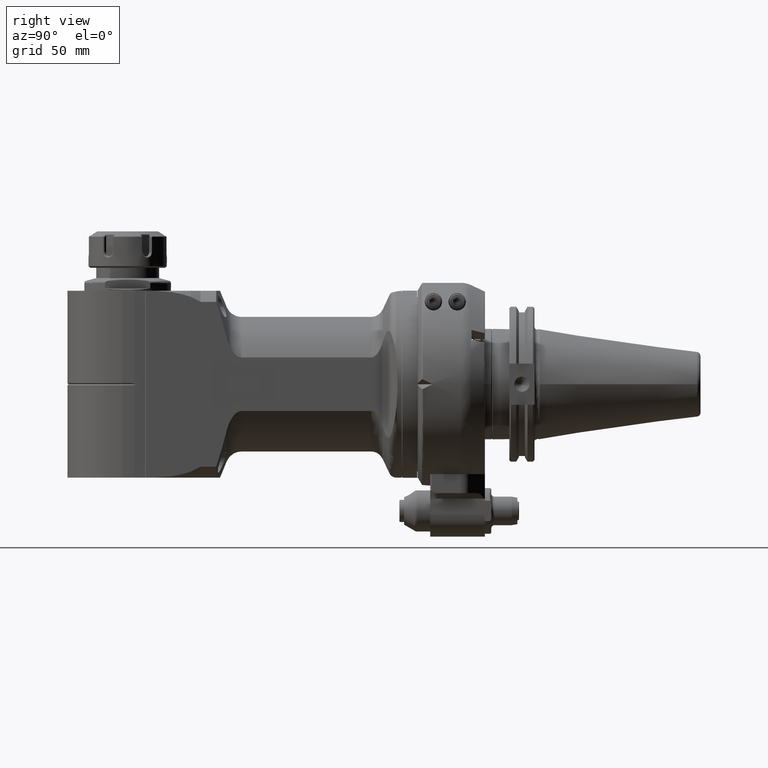
[diagram: clean part render]
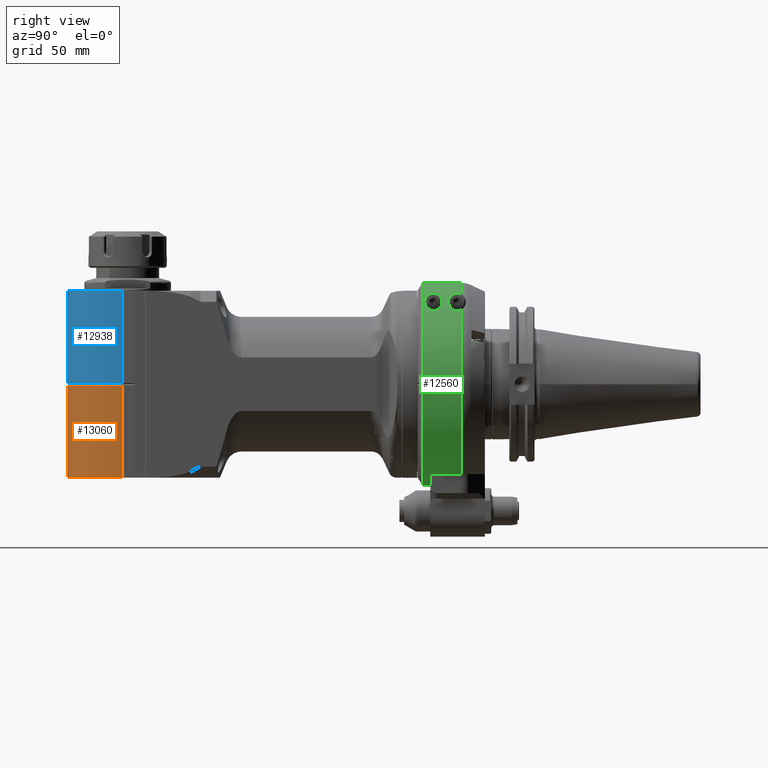
[diagram: same view with three faces highlighted in distinct colors, each labeled with its STEP entity id]
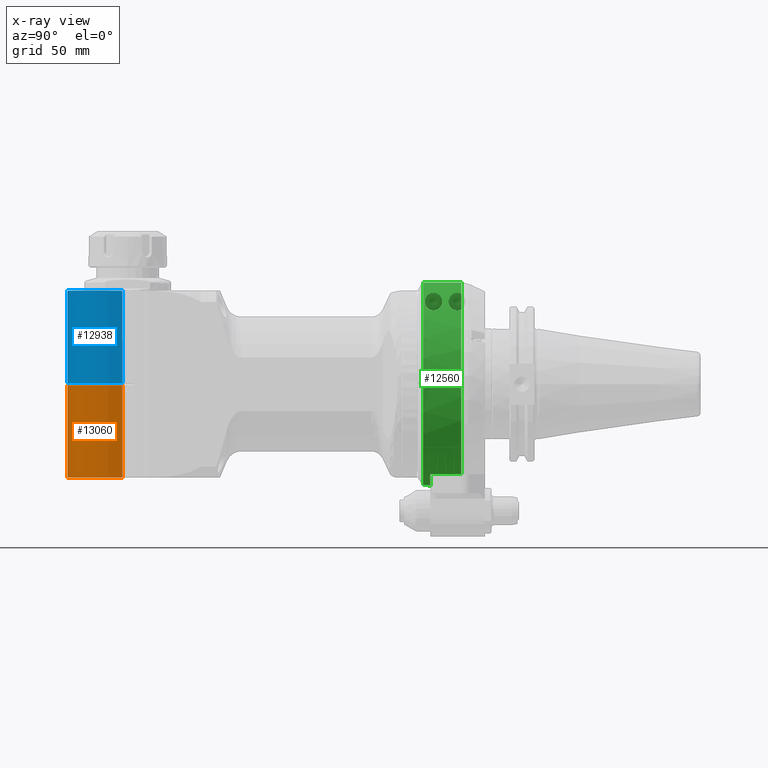
[diagram: x-ray of the same camera — body ghosted, the three highlighted faces saturated]
A machine part, right view with three faces highlighted in distinct colors.
The next image is the same camera in x-ray (body ghosted, the three faces saturated) — at least one of them is partly hidden behind the body in this view.
Their STEP definitions:

[orange] entity #13060 — the highlighted cylindrical surface (partial cylindrical patch) has radius 38 mm, axis along (-0, 0, -1).
#589=CYLINDRICAL_SURFACE('',#14350,38.);
#1122=CIRCLE('',#14148,38.);
#1205=CIRCLE('',#14351,38.);
#1804=FACE_OUTER_BOUND('',#2553,.T.);
#2553=EDGE_LOOP('',(#10869,#10870,#10871,#10872));
#3678=LINE('',#36404,#4625);
#3685=LINE('',#36440,#4632);
#4625=VECTOR('',#17210,58.33431457505);
#4632=VECTOR('',#17249,58.33431457505);
#5736=VERTEX_POINT('',#35449);
#5737=VERTEX_POINT('',#35451);
#5879=VERTEX_POINT('',#36403);
#5886=VERTEX_POINT('',#36439);
#7417=EDGE_CURVE('',#5736,#5737,#1122,.T.);
#7649=EDGE_CURVE('',#5879,#5737,#3678,.T.);
#7665=EDGE_CURVE('',#5736,#5886,#3685,.T.);
#7667=EDGE_CURVE('',#5879,#5886,#1205,.T.);
#10869=ORIENTED_EDGE('',*,*,#7649,.T.);
#10870=ORIENTED_EDGE('',*,*,#7417,.F.);
#10871=ORIENTED_EDGE('',*,*,#7665,.T.);
#10872=ORIENTED_EDGE('',*,*,#7667,.F.);
#13060=ADVANCED_FACE('',(#1804),#589,.T.);
#14148=AXIS2_PLACEMENT_3D('',#35452,#16750,#16751);
#14350=AXIS2_PLACEMENT_3D('',#36442,#17251,#17252);
#14351=AXIS2_PLACEMENT_3D('',#36443,#17253,#17254);
#16750=DIRECTION('center_axis',(0.,1.,0.));
#16751=DIRECTION('ref_axis',(0.0871557427475263,0.,0.996194698091757));
#17210=DIRECTION('',(-2.972048763895E-14,1.,0.));
#17249=DIRECTION('',(3.020770874779E-14,-1.,0.));
#17251=DIRECTION('center_axis',(0.,1.,0.));
#17252=DIRECTION('ref_axis',(1.,0.,-2.23269251724179E-14));
#17253=DIRECTION('center_axis',(0.,-1.,0.));
#17254=DIRECTION('ref_axis',(1.,0.,0.));
#35449=CARTESIAN_POINT('',(176.3119182244,59.,37.85539852749));
#35451=CARTESIAN_POINT('',(176.3119182244,59.,-37.85539852749));
#35452=CARTESIAN_POINT('Origin',(173.,59.,0.));
#36403=CARTESIAN_POINT('',(176.3119182244,0.6656854249492,-37.85539852749));
#36404=CARTESIAN_POINT('',(176.3119182244,0.6656854249492,-37.85539852749));
#36439=CARTESIAN_POINT('',(176.3119182244,0.6656854249492,37.85539852749));
#36440=CARTESIAN_POINT('',(176.3119182244,59.,37.85539852749));
#36442=CARTESIAN_POINT('Origin',(173.,-70.8000024,0.));
#36443=CARTESIAN_POINT('Origin',(173.,0.6656854249492,0.));

[blue] entity #12938 — the highlighted cylindrical surface (partial cylindrical patch) has radius 38 mm, axis along (-0, 0, -1).
#564=CYLINDRICAL_SURFACE('',#14142,38.);
#1112=CIRCLE('',#14128,38.);
#1119=CIRCLE('',#14140,38.);
#1682=FACE_OUTER_BOUND('',#2412,.T.);
#2412=EDGE_LOOP('',(#10291,#10292,#10293,#10294));
#3567=LINE('',#35224,#4514);
#3583=LINE('',#35404,#4530);
#4514=VECTOR('',#16693,58.33431457505);
#4530=VECTOR('',#16733,58.33431457505);
#5676=VERTEX_POINT('',#35165);
#5677=VERTEX_POINT('',#35167);
#5693=VERTEX_POINT('',#35222);
#5727=VERTEX_POINT('',#35398);
#7346=EDGE_CURVE('',#5676,#5677,#1112,.T.);
#7365=EDGE_CURVE('',#5676,#5693,#3567,.T.);
#7402=EDGE_CURVE('',#5727,#5693,#1119,.T.);
#7405=EDGE_CURVE('',#5727,#5677,#3583,.T.);
#10291=ORIENTED_EDGE('',*,*,#7402,.F.);
#10292=ORIENTED_EDGE('',*,*,#7405,.T.);
#10293=ORIENTED_EDGE('',*,*,#7346,.F.);
#10294=ORIENTED_EDGE('',*,*,#7365,.T.);
#12938=ADVANCED_FACE('',(#1682),#564,.T.);
#14128=AXIS2_PLACEMENT_3D('',#35168,#16680,#16681);
#14140=AXIS2_PLACEMENT_3D('',#35399,#16726,#16727);
#14142=AXIS2_PLACEMENT_3D('',#35403,#16731,#16732);
#16680=DIRECTION('center_axis',(0.,-1.,0.));
#16681=DIRECTION('ref_axis',(0.0871557427475263,0.,-0.996194698091757));
#16693=DIRECTION('',(3.069492985662E-14,1.,0.));
#16726=DIRECTION('center_axis',(0.,1.,0.));
#16727=DIRECTION('ref_axis',(0.087155742747664,0.,0.996194698091745));
#16731=DIRECTION('center_axis',(0.,1.,0.));
#16732=DIRECTION('ref_axis',(1.,0.,2.3215103592118E-14));
#16733=DIRECTION('',(-3.118215096546E-14,-1.,0.));
#35165=CARTESIAN_POINT('',(176.3119182244,-59.,-37.85539852749));
#35167=CARTESIAN_POINT('',(176.3119182244,-59.,37.85539852749));
#35168=CARTESIAN_POINT('Origin',(173.,-59.,0.));
#35222=CARTESIAN_POINT('',(176.3119182244,-0.6656854249492,-37.85539852749));
#35224=CARTESIAN_POINT('',(176.3119182244,-59.,-37.85539852749));
#35398=CARTESIAN_POINT('',(176.3119182244,-0.6656854249492,37.85539852749));
#35399=CARTESIAN_POINT('Origin',(173.,-0.6656854249492,0.));
#35403=CARTESIAN_POINT('Origin',(173.,-70.8000024,0.));
#35404=CARTESIAN_POINT('',(176.3119182244,-0.6656854249492,37.85539852749));

[green] entity #12560 — the highlighted cylindrical surface (partial cylindrical patch) has radius 64 mm, axis along (0, -1, 0).
#231=ELLIPSE('',#13413,181.019335983739,64.);
#232=ELLIPSE('',#13414,181.019335983739,64.);
#240=B_SPLINE_CURVE_WITH_KNOTS('',3,(#17960,#17961,#17962,#17963,#17964,
#17965,#17966,#17967,#17968,#17969,#17970,#17971,#17972,#17973,#17974,#17975,
#17976,#17977,#17978,#17979,#17980,#17981,#17982,#17983,#17984,#17985,#17986,
#17987,#17988,#17989,#17990),.UNSPECIFIED.,.F.,.F.,(4,2,2,2,2,2,2,2,2,3,
2,2,2,2,4),(2.33576591656641,2.53697025208635,2.73817458760629,3.07997710502095,
3.42177962243561,3.82914079742247,4.23650197240934,4.45401690277108,4.56277436795195,
4.67153183313282,4.78028929831369,4.88904676349456,5.1065616938563,5.51392286884317,
5.92128404383004),.UNSPECIFIED.);
#241=B_SPLINE_CURVE_WITH_KNOTS('',3,(#17991,#17992,#17993,#17994,#17995,
#17996,#17997,#17998,#17999,#18000),.UNSPECIFIED.,.F.,.F.,(4,2,2,2,4),(1.24975221070201,
1.59155472811516,1.9333572455283,2.13456158104736,2.33576591656641),
 .UNSPECIFIED.);
#242=B_SPLINE_CURVE_WITH_KNOTS('',3,(#18028,#18029,#18030,#18031,#18032,
#18033),.UNSPECIFIED.,.F.,.F.,(4,2,4),(-0.273385795737172,-0.201204335519941,
0.),.UNSPECIFIED.);
#243=B_SPLINE_CURVE_WITH_KNOTS('',3,(#18034,#18035,#18036,#18037,#18038,
#18039,#18040,#18041,#18042,#18043,#18044,#18045,#18046,#18047,#18048,#18049,
#18050,#18051,#18052,#18053,#18054,#18055,#18056,#18057,#18058,#18059),
 .UNSPECIFIED.,.F.,.F.,(4,2,2,2,2,2,2,2,2,2,2,2,4),(0.,0.201204335519941,
0.402408671039883,0.74421118845454,1.0860137058692,1.49337488085606,1.90073605584293,
2.11825098620467,2.22700845138554,2.33576591656641,2.44452338174728,2.55328084692815,
2.64273772667916),.UNSPECIFIED.);
#478=CYLINDRICAL_SURFACE('',#13410,64.);
#671=FACE_BOUND('',#1978,.T.);
#777=CIRCLE('',#13411,64.);
#778=CIRCLE('',#13412,64.);
#779=CIRCLE('',#13415,64.);
#780=CIRCLE('',#13416,64.);
#781=CIRCLE('',#13417,64.);
#782=CIRCLE('',#13418,64.);
#1304=FACE_OUTER_BOUND('',#1977,.T.);
#1977=EDGE_LOOP('',(#8102,#8103,#8104,#8105,#8106,#8107,#8108,#8109,#8110,
#8111,#8112,#8113,#8114,#8115));
#1978=EDGE_LOOP('',(#8116,#8117));
#2942=LINE('',#18006,#3889);
#2943=LINE('',#18016,#3890);
#2944=LINE('',#18020,#3891);
#2945=LINE('',#18024,#3892);
#3889=VECTOR('',#14630,24.13740257269);
#3890=VECTOR('',#14639,24.13740277612);
#3891=VECTOR('',#14642,19.6014866602);
#3892=VECTOR('',#14645,19.6014866602);
#4838=VERTEX_POINT('',#17957);
#4839=VERTEX_POINT('',#17959);
#4840=VERTEX_POINT('',#18002);
#4841=VERTEX_POINT('',#18003);
#4842=VERTEX_POINT('',#18005);
#4843=VERTEX_POINT('',#18007);
#4844=VERTEX_POINT('',#18009);
#4845=VERTEX_POINT('',#18011);
#4846=VERTEX_POINT('',#18013);
#4847=VERTEX_POINT('',#18015);
#4848=VERTEX_POINT('',#18017);
#4849=VERTEX_POINT('',#18019);
#4850=VERTEX_POINT('',#18021);
#4851=VERTEX_POINT('',#18023);
#4852=VERTEX_POINT('',#18025);
#4853=VERTEX_POINT('',#18027);
#6185=EDGE_CURVE('',#4839,#4838,#240,.T.);
#6186=EDGE_CURVE('',#4838,#4839,#241,.T.);
#6187=EDGE_CURVE('',#4840,#4841,#777,.T.);
#6188=EDGE_CURVE('',#4840,#4842,#2942,.T.);
#6189=EDGE_CURVE('',#4843,#4842,#778,.T.);
#6190=EDGE_CURVE('',#4844,#4843,#231,.T.);
#6191=EDGE_CURVE('',#4845,#4844,#232,.T.);
#6192=EDGE_CURVE('',#4846,#4845,#779,.T.);
#6193=EDGE_CURVE('',#4846,#4847,#2943,.T.);
#6194=EDGE_CURVE('',#4848,#4847,#780,.T.);
#6195=EDGE_CURVE('',#4848,#4849,#2944,.T.);
#6196=EDGE_CURVE('',#4850,#4849,#781,.T.);
#6197=EDGE_CURVE('',#4850,#4851,#2945,.T.);
#6198=EDGE_CURVE('',#4852,#4851,#782,.T.);
#6199=EDGE_CURVE('',#4852,#4853,#242,.T.);
#6200=EDGE_CURVE('',#4853,#4841,#243,.T.);
#8102=ORIENTED_EDGE('',*,*,#6187,.F.);
#8103=ORIENTED_EDGE('',*,*,#6188,.T.);
#8104=ORIENTED_EDGE('',*,*,#6189,.F.);
#8105=ORIENTED_EDGE('',*,*,#6190,.F.);
#8106=ORIENTED_EDGE('',*,*,#6191,.F.);
#8107=ORIENTED_EDGE('',*,*,#6192,.F.);
#8108=ORIENTED_EDGE('',*,*,#6193,.T.);
#8109=ORIENTED_EDGE('',*,*,#6194,.F.);
#8110=ORIENTED_EDGE('',*,*,#6195,.T.);
#8111=ORIENTED_EDGE('',*,*,#6196,.F.);
#8112=ORIENTED_EDGE('',*,*,#6197,.T.);
#8113=ORIENTED_EDGE('',*,*,#6198,.F.);
#8114=ORIENTED_EDGE('',*,*,#6199,.T.);
#8115=ORIENTED_EDGE('',*,*,#6200,.T.);
#8116=ORIENTED_EDGE('',*,*,#6185,.T.);
#8117=ORIENTED_EDGE('',*,*,#6186,.T.);
#12560=ADVANCED_FACE('',(#1304,#671),#478,.T.);
#13410=AXIS2_PLACEMENT_3D('',#18001,#14626,#14627);
#13411=AXIS2_PLACEMENT_3D('',#18004,#14628,#14629);
#13412=AXIS2_PLACEMENT_3D('',#18008,#14631,#14632);
#13413=AXIS2_PLACEMENT_3D('',#18010,#14633,#14634);
#13414=AXIS2_PLACEMENT_3D('',#18012,#14635,#14636);
#13415=AXIS2_PLACEMENT_3D('',#18014,#14637,#14638);
#13416=AXIS2_PLACEMENT_3D('',#18018,#14640,#14641);
#13417=AXIS2_PLACEMENT_3D('',#18022,#14643,#14644);
#13418=AXIS2_PLACEMENT_3D('',#18026,#14646,#14647);
#14626=DIRECTION('center_axis',(1.,0.,0.));
#14627=DIRECTION('ref_axis',(0.,1.,1.60450656165627E-11));
#14628=DIRECTION('center_axis',(-1.,0.,0.));
#14629=DIRECTION('ref_axis',(0.,-0.999725304124303,0.0234374975961501));
#14630=DIRECTION('',(1.,-2.425378056554E-11,-1.034538208508E-9));
#14631=DIRECTION('center_axis',(1.,0.,0.));
#14632=DIRECTION('ref_axis',(0.,-0.0464269197113178,0.998921689185954));
#14633=DIRECTION('center_axis',(0.353553390593307,0.707106781186515,0.612372435695813));
#14634=DIRECTION('ref_axis',(0.935414346693473,-0.267261241912441,-0.23145502494317));
#14635=DIRECTION('center_axis',(0.353553390593307,-0.707106781186515,0.612372435695813));
#14636=DIRECTION('ref_axis',(-0.935414346693473,-0.267261241912441,0.23145502494317));
#14637=DIRECTION('center_axis',(1.,0.,0.));
#14638=DIRECTION('ref_axis',(0.,1.,0.));
#14639=DIRECTION('',(-1.,2.10977951291E-11,-8.999391902731E-10));
#14640=DIRECTION('center_axis',(-1.,0.,0.));
#14641=DIRECTION('ref_axis',(0.,0.88671874999999,-0.462309267047995));
#14642=DIRECTION('',(1.,0.,0.));
#14643=DIRECTION('center_axis',(-1.,0.,0.));
#14644=DIRECTION('ref_axis',(0.,1.,0.));
#14645=DIRECTION('',(-1.,0.,0.));
#14646=DIRECTION('center_axis',(-1.,0.,0.));
#14647=DIRECTION('ref_axis',(0.,-0.73678359372379,0.676128638662391));
#17957=CARTESIAN_POINT('',(-29.49999984616,-52.00000042485,37.30951562026));
#17959=CARTESIAN_POINT('',(-23.99999984615,-46.50000042486,43.97442393583));
#17960=CARTESIAN_POINT('Ctrl Pts',(-23.99999984615,-46.50000042486,43.9744239358291));
#17961=CARTESIAN_POINT('Ctrl Pts',(-23.3293187277502,-46.50000042486,43.9744239358291));
#17962=CARTESIAN_POINT('Ctrl Pts',(-22.6394124974028,-46.6307093597918,
43.8371576677145));
#17963=CARTESIAN_POINT('Ctrl Pts',(-21.4145340815975,-47.1014453269266,
43.330973996245));
#17964=CARTESIAN_POINT('Ctrl Pts',(-20.878378353573,-47.4391753028209,42.9627879316632));
#17965=CARTESIAN_POINT('Ctrl Pts',(-19.7548516274323,-48.3831077989478,
41.9031361817933));
#17966=CARTESIAN_POINT('Ctrl Pts',(-19.2533117544257,-49.1081702488795,
41.0581670328874));
#17967=CARTESIAN_POINT('Ctrl Pts',(-18.6249985189808,-50.5846965992716,
39.2246598953968));
#17968=CARTESIAN_POINT('Ctrl Pts',(-18.49999984615,-51.3358084268127,38.235230779103));
#17969=CARTESIAN_POINT('Ctrl Pts',(-18.49999984615,-52.7915862645079,36.2062457622713));
#17970=CARTESIAN_POINT('Ctrl Pts',(-18.6763243744385,-53.6122599705483,
34.9821186225339));
#17971=CARTESIAN_POINT('Ctrl Pts',(-19.3905122731123,-55.1134442052857,
32.5657995649948));
#17972=CARTESIAN_POINT('Ctrl Pts',(-19.9198637713799,-55.7954903504457,
31.3720538264285));
#17973=CARTESIAN_POINT('Ctrl Pts',(-21.0059555050292,-56.6383964479,29.8072946608512));
#17974=CARTESIAN_POINT('Ctrl Pts',(-21.4859055950632,-56.9292743638302,
29.2452605488542));
#17975=CARTESIAN_POINT('Ctrl Pts',(-22.3374405194047,-57.2514763474828,
28.6063863858598));
#17976=CARTESIAN_POINT('Ctrl Pts',(-22.6429386674521,-57.3402067213012,
28.4274607860322));
#17977=CARTESIAN_POINT('Ctrl Pts',(-23.2929847793078,-57.4644037607939,
28.1755551468921));
#17978=CARTESIAN_POINT('Ctrl Pts',(-23.6374749622138,-57.50000042486,28.1024901234944));
#17979=CARTESIAN_POINT('Ctrl Pts',(-23.99999984615,-57.50000042486,28.1024901234944));
#17980=CARTESIAN_POINT('Ctrl Pts',(-24.3625247300862,-57.50000042486,28.1024901234944));
#17981=CARTESIAN_POINT('Ctrl Pts',(-24.7070149129922,-57.4644037607939,
28.1755551468921));
#17982=CARTESIAN_POINT('Ctrl Pts',(-25.3570610248479,-57.3402067213012,
28.4274607860322));
#17983=CARTESIAN_POINT('Ctrl Pts',(-25.6625591728953,-57.2514763474828,
28.6063863858598));
#17984=CARTESIAN_POINT('Ctrl Pts',(-26.5140940972368,-56.9292743638302,
29.2452605488542));
#17985=CARTESIAN_POINT('Ctrl Pts',(-26.9940441872708,-56.6383964479,29.8072946608512));
#17986=CARTESIAN_POINT('Ctrl Pts',(-28.0801359209201,-55.7954903504457,
31.3720538264285));
#17987=CARTESIAN_POINT('Ctrl Pts',(-28.6094874191877,-55.1134442052857,
32.5657995649948));
#17988=CARTESIAN_POINT('Ctrl Pts',(-29.3236753178615,-53.6122599705483,
34.9821186225339));
#17989=CARTESIAN_POINT('Ctrl Pts',(-29.49999984615,-52.7915862645079,36.2062457622713));
#17990=CARTESIAN_POINT('Ctrl Pts',(-29.49999984615,-52.00000042486,37.3095156202082));
#17991=CARTESIAN_POINT('Ctrl Pts',(-29.49999984615,-52.00000042486,37.3095156202082));
#17992=CARTESIAN_POINT('Ctrl Pts',(-29.4999998461466,-51.335808426812,38.2352307791025));
#17993=CARTESIAN_POINT('Ctrl Pts',(-29.3750011733192,-50.5846965992716,
39.2246598953968));
#17994=CARTESIAN_POINT('Ctrl Pts',(-28.7466879378743,-49.1081702488795,
41.0581670328874));
#17995=CARTESIAN_POINT('Ctrl Pts',(-28.2451480648677,-48.3831077989478,
41.9031361817933));
#17996=CARTESIAN_POINT('Ctrl Pts',(-27.121621338727,-47.4391753028209,42.9627879316632));
#17997=CARTESIAN_POINT('Ctrl Pts',(-26.5854656107025,-47.1014453269266,
43.330973996245));
#17998=CARTESIAN_POINT('Ctrl Pts',(-25.3605871948972,-46.6307093597918,
43.8371576677145));
#17999=CARTESIAN_POINT('Ctrl Pts',(-24.6706809645498,-46.50000042486,43.9744239358291));
#18000=CARTESIAN_POINT('Ctrl Pts',(-23.99999984615,-46.50000042486,43.9744239358291));
#18001=CARTESIAN_POINT('Origin',(-52.92307692308,0.,0.));
#18002=CARTESIAN_POINT('',(-41.6014866639405,-63.9824194641222,1.49999983907449));
#18003=CARTESIAN_POINT('',(-41.6014866602,-56.84585085139,29.40321820789));
#18004=CARTESIAN_POINT('Origin',(-41.6014866602,0.,0.));
#18005=CARTESIAN_POINT('',(-17.46410184591,-63.9824194644093,1.4999998268305));
#18006=CARTESIAN_POINT('',(-41.60149495232,-63.98241946429,1.499999831995));
#18007=CARTESIAN_POINT('',(-17.46410184591,-2.971322861524,63.9309881079));
#18008=CARTESIAN_POINT('Origin',(-17.46410184591,0.,0.));
#18009=CARTESIAN_POINT('',(-23.5262796724,4.618527782441E-14,64.));
#18010=CARTESIAN_POINT('Origin',(87.3249720120039,0.,0.));
#18011=CARTESIAN_POINT('',(-17.46410184591,2.971322861525,63.9309881079));
#18012=CARTESIAN_POINT('Origin',(87.3249720119983,0.,0.));
#18013=CARTESIAN_POINT('',(-17.4641018368063,-63.9824194643885,-1.49999982761552));
#18014=CARTESIAN_POINT('Origin',(-17.46410184591,0.,0.));
#18015=CARTESIAN_POINT('',(-41.6014866642563,-63.9824194641339,-1.49999983847661));
#18016=CARTESIAN_POINT('',(-17.46409287636,-63.98241946482,-1.499999809077));
#18017=CARTESIAN_POINT('',(-41.6014866602,56.75,-29.58779309107));
#18018=CARTESIAN_POINT('Origin',(-41.6014866602,0.,0.));
#18019=CARTESIAN_POINT('',(-22.,56.75,-29.58779309107));
#18020=CARTESIAN_POINT('',(-41.6014866602,56.75,-29.58779309107));
#18021=CARTESIAN_POINT('',(-22.,56.75,29.58779309107));
#18022=CARTESIAN_POINT('Origin',(-22.,0.,0.));
#18023=CARTESIAN_POINT('',(-41.6014866602,56.75,29.58779309107));
#18024=CARTESIAN_POINT('',(-22.,56.75,29.58779309107));
#18025=CARTESIAN_POINT('',(-41.6014866602,-47.15414999832,43.27223287439));
#18026=CARTESIAN_POINT('Origin',(-41.6014866602,0.,0.));
#18027=CARTESIAN_POINT('',(-38.99999984615,-46.50000042486,43.9744239358291));
#18028=CARTESIAN_POINT('Ctrl Pts',(-41.6014866601967,-47.1541499983259,
43.2722328743894));
#18029=CARTESIAN_POINT('Ctrl Pts',(-41.4031969999184,-47.0476985210472,
43.3882340278707));
#18030=CARTESIAN_POINT('Ctrl Pts',(-41.1927371570759,-46.9505149112594,
43.4932698845406));
#18031=CARTESIAN_POINT('Ctrl Pts',(-40.3605871948972,-46.6307093597918,
43.8371576677145));
#18032=CARTESIAN_POINT('Ctrl Pts',(-39.6706809645498,-46.50000042486,43.9744239358291));
#18033=CARTESIAN_POINT('Ctrl Pts',(-38.99999984615,-46.50000042486,43.9744239358291));
#18034=CARTESIAN_POINT('Ctrl Pts',(-38.99999984615,-46.50000042486,43.9744239358291));
#18035=CARTESIAN_POINT('Ctrl Pts',(-38.3293187277502,-46.50000042486,43.9744239358291));
#18036=CARTESIAN_POINT('Ctrl Pts',(-37.6394124974028,-46.6307093597918,
43.8371576677145));
#18037=CARTESIAN_POINT('Ctrl Pts',(-36.4145340815975,-47.1014453269266,
43.330973996245));
#18038=CARTESIAN_POINT('Ctrl Pts',(-35.878378353573,-47.4391753028209,42.9627879316632));
#18039=CARTESIAN_POINT('Ctrl Pts',(-34.7548516274323,-48.3831077989478,
41.9031361817933));
#18040=CARTESIAN_POINT('Ctrl Pts',(-34.2533117544257,-49.1081702488795,
41.0581670328874));
#18041=CARTESIAN_POINT('Ctrl Pts',(-33.6249985189808,-50.5846965992716,
39.2246598953968));
#18042=CARTESIAN_POINT('Ctrl Pts',(-33.49999984615,-51.3358084268127,38.235230779103));
#18043=CARTESIAN_POINT('Ctrl Pts',(-33.49999984615,-52.7915862645079,36.2062457622713));
#18044=CARTESIAN_POINT('Ctrl Pts',(-33.6763243744385,-53.6122599705483,
34.9821186225339));
#18045=CARTESIAN_POINT('Ctrl Pts',(-34.3905122731123,-55.1134442052857,
32.5657995649948));
#18046=CARTESIAN_POINT('Ctrl Pts',(-34.9198637713799,-55.7954903504457,
31.3720538264285));
#18047=CARTESIAN_POINT('Ctrl Pts',(-36.0059555050292,-56.6383964479,29.8072946608512));
#18048=CARTESIAN_POINT('Ctrl Pts',(-36.4859055950632,-56.9292743638302,
29.2452605488542));
#18049=CARTESIAN_POINT('Ctrl Pts',(-37.3374405194047,-57.2514763474828,
28.6063863858598));
#18050=CARTESIAN_POINT('Ctrl Pts',(-37.6429386674521,-57.3402067213012,
28.4274607860322));
#18051=CARTESIAN_POINT('Ctrl Pts',(-38.2929847793078,-57.4644037607939,
28.1755551468921));
#18052=CARTESIAN_POINT('Ctrl Pts',(-38.6374749622138,-57.50000042486,28.1024901234944));
#18053=CARTESIAN_POINT('Ctrl Pts',(-39.3625247300862,-57.50000042486,28.1024901234944));
#18054=CARTESIAN_POINT('Ctrl Pts',(-39.7070149129922,-57.4644037607939,
28.1755551468921));
#18055=CARTESIAN_POINT('Ctrl Pts',(-40.3570610248479,-57.3402067213012,
28.4274607860322));
#18056=CARTESIAN_POINT('Ctrl Pts',(-40.6625591728953,-57.2514763474828,
28.6063863858598));
#18057=CARTESIAN_POINT('Ctrl Pts',(-41.1798767257157,-57.0557348259874,
28.9945100072322));
#18058=CARTESIAN_POINT('Ctrl Pts',(-41.3986417214153,-56.9547478224287,
29.1926854379836));
#18059=CARTESIAN_POINT('Ctrl Pts',(-41.6014866601971,-56.8458508513939,
29.4032182078948));